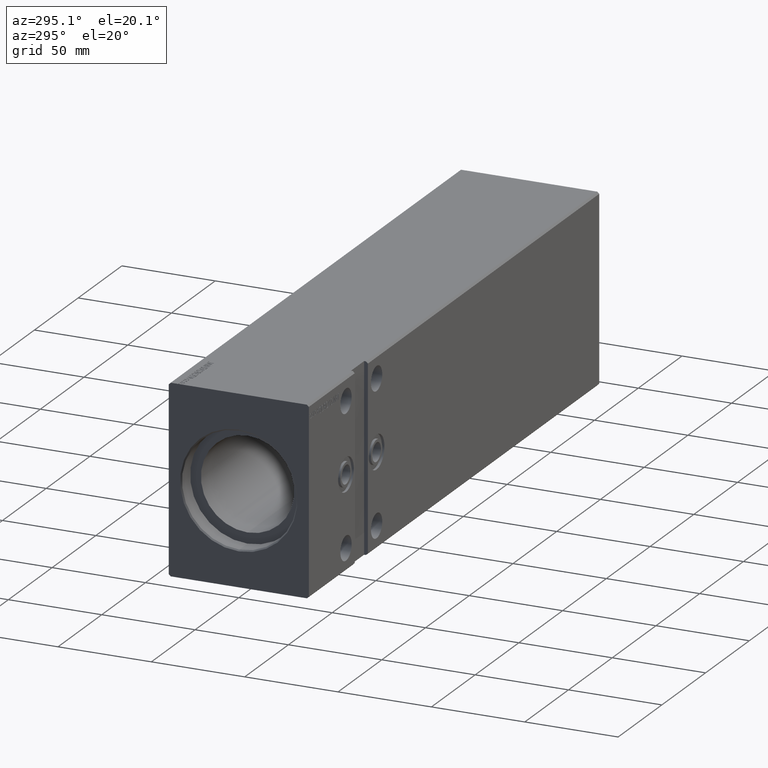
[diagram: clean part render]
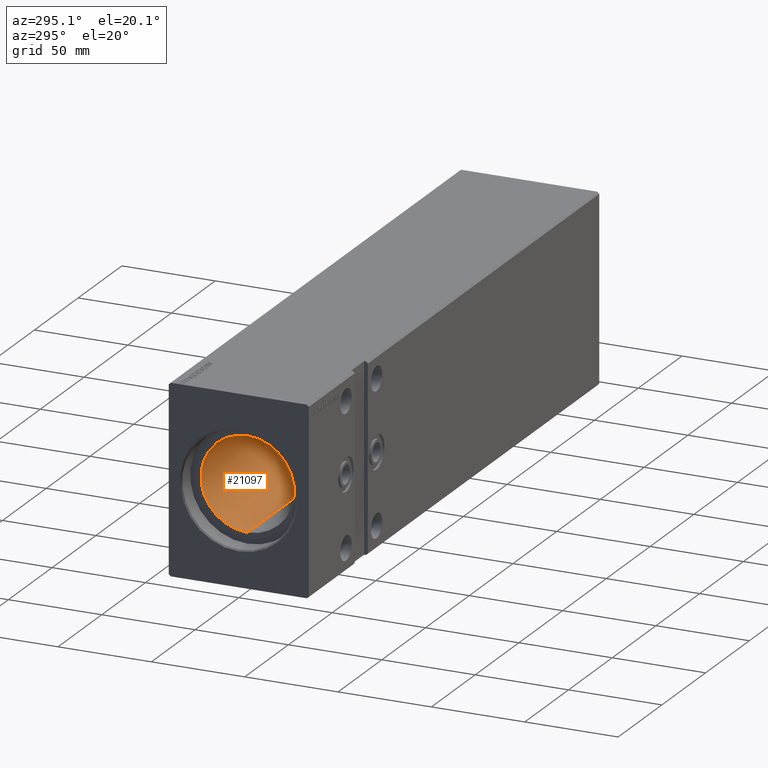
[diagram: same view with one face highlighted and labeled with its STEP entity id]
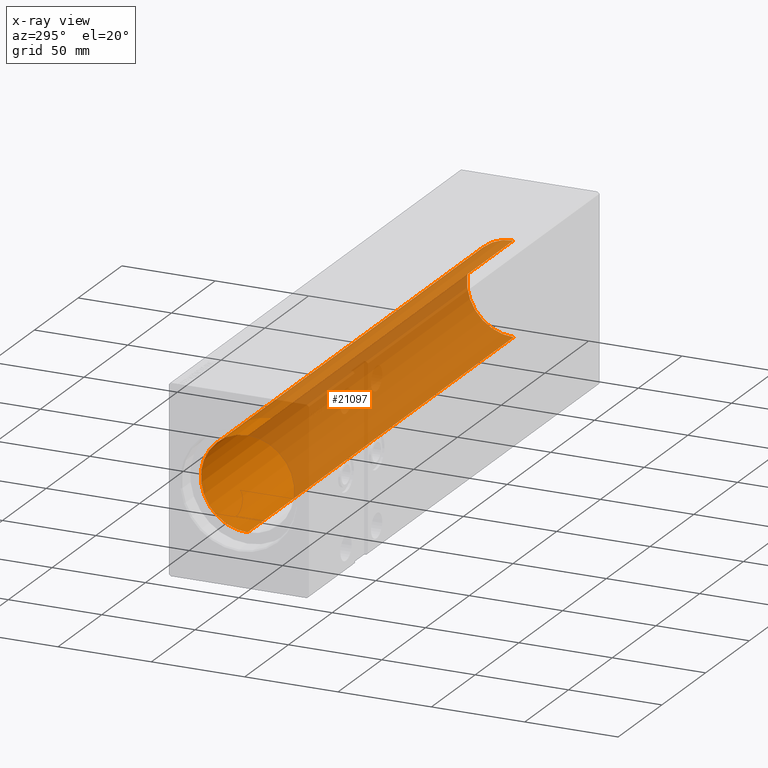
[diagram: x-ray of the same camera — body ghosted, the highlighted face saturated]
A machine part, auxiliary view. The second image highlights one B-rep face of the part: STEP entity #21097.
The next image is the same camera in x-ray: the body ghosted, the highlighted face saturated — about 77% of this face is hidden behind the body in this view.
In plain terms, the highlighted cylindrical surface (partial cylindrical patch) has radius 25 mm, axis along (-1, -0, -0).
Its self-contained STEP definition (entity closure, byte-faithful):
#3142 = DIRECTION ( 'NONE',  ( 0.000000000000000000, 0.000000000000000000, 1.000000000000000000 ) ) ;
#5082 = VERTEX_POINT ( 'NONE', #19374 ) ;
#6946 = CARTESIAN_POINT ( 'NONE',  ( 10.00000000000000888, 0.000000000000000000, 25.00000000000000000 ) ) ;
#9024 = ORIENTED_EDGE ( 'NONE', *, *, #23628, .T. ) ;
#11335 = LINE ( 'NONE', #37892, #17538 ) ;
#12346 = VECTOR ( 'NONE', #42047, 1000.000000000000000 ) ;
#12467 = DIRECTION ( 'NONE',  ( 0.000000000000000000, 0.000000000000000000, 1.000000000000000000 ) ) ;
#12701 = EDGE_LOOP ( 'NONE', ( #13431, #38239, #9024, #14274 ) ) ;
#13327 = CARTESIAN_POINT ( 'NONE',  ( 10.00000000000000888, 0.000000000000000000, 0.000000000000000000 ) ) ;
#13370 = VERTEX_POINT ( 'NONE', #13596 ) ;
#13431 = ORIENTED_EDGE ( 'NONE', *, *, #37382, .F. ) ;
#13596 = CARTESIAN_POINT ( 'NONE',  ( 10.00000000000000888, 3.061616997868383043E-15, -25.00000000000000000 ) ) ;
#13959 = VERTEX_POINT ( 'NONE', #28863 ) ;
#14274 = ORIENTED_EDGE ( 'NONE', *, *, #25614, .T. ) ;
#14962 = AXIS2_PLACEMENT_3D ( 'NONE', #35408, #31804, #12467 ) ;
#17538 = VECTOR ( 'NONE', #21710, 1000.000000000000000 ) ;
#19374 = CARTESIAN_POINT ( 'NONE',  ( 314.1999999999999886, 3.061616997868383043E-15, -25.00000000000000000 ) ) ;
#21097 = ADVANCED_FACE ( 'NONE', ( #35454 ), #38452, .F. ) ;
#21710 = DIRECTION ( 'NONE',  ( -1.000000000000000000, -0.000000000000000000, -0.000000000000000000 ) ) ;
#22683 = DIRECTION ( 'NONE',  ( -1.000000000000000000, -0.000000000000000000, -0.000000000000000000 ) ) ;
#23628 = EDGE_CURVE ( 'NONE', #13959, #29253, #11335, .T. ) ;
#25614 = EDGE_CURVE ( 'NONE', #29253, #13370, #36575, .T. ) ;
#25660 = CARTESIAN_POINT ( 'NONE',  ( 314.1999999999999886, 0.000000000000000000, 0.000000000000000000 ) ) ;
#28863 = CARTESIAN_POINT ( 'NONE',  ( 314.1999999999999886, 0.000000000000000000, 25.00000000000000000 ) ) ;
#28872 = CARTESIAN_POINT ( 'NONE',  ( 314.1999999999999886, 3.061616997868383043E-15, -25.00000000000000000 ) ) ;
#29135 = AXIS2_PLACEMENT_3D ( 'NONE', #13327, #32465, #3142 ) ;
#29253 = VERTEX_POINT ( 'NONE', #6946 ) ;
#31730 = AXIS2_PLACEMENT_3D ( 'NONE', #25660, #22683, #35662 ) ;
#31804 = DIRECTION ( 'NONE',  ( -1.000000000000000000, 0.000000000000000000, 0.000000000000000000 ) ) ;
#32465 = DIRECTION ( 'NONE',  ( -1.000000000000000000, 0.000000000000000000, 0.000000000000000000 ) ) ;
#34175 = EDGE_CURVE ( 'NONE', #13959, #5082, #34667, .T. ) ;
#34667 = CIRCLE ( 'NONE', #14962, 25.00000000000000000 ) ;
#35408 = CARTESIAN_POINT ( 'NONE',  ( 314.1999999999999886, 0.000000000000000000, 0.000000000000000000 ) ) ;
#35454 = FACE_OUTER_BOUND ( 'NONE', #12701, .T. ) ;
#35662 = DIRECTION ( 'NONE',  ( 0.000000000000000000, 0.000000000000000000, 1.000000000000000000 ) ) ;
#36575 = CIRCLE ( 'NONE', #29135, 25.00000000000000000 ) ;
#37382 = EDGE_CURVE ( 'NONE', #5082, #13370, #38456, .T. ) ;
#37892 = CARTESIAN_POINT ( 'NONE',  ( 314.1999999999999886, 0.000000000000000000, 25.00000000000000000 ) ) ;
#38239 = ORIENTED_EDGE ( 'NONE', *, *, #34175, .F. ) ;
#38452 = CYLINDRICAL_SURFACE ( 'NONE', #31730, 25.00000000000000000 ) ;
#38456 = LINE ( 'NONE', #28872, #12346 ) ;
#42047 = DIRECTION ( 'NONE',  ( -1.000000000000000000, -0.000000000000000000, -0.000000000000000000 ) ) ;